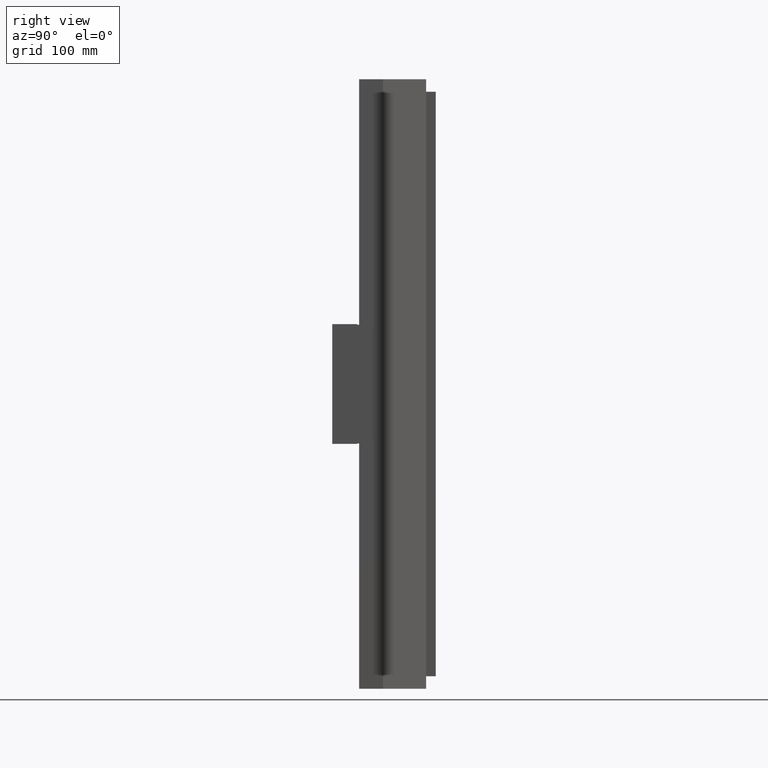
[diagram: clean part render]
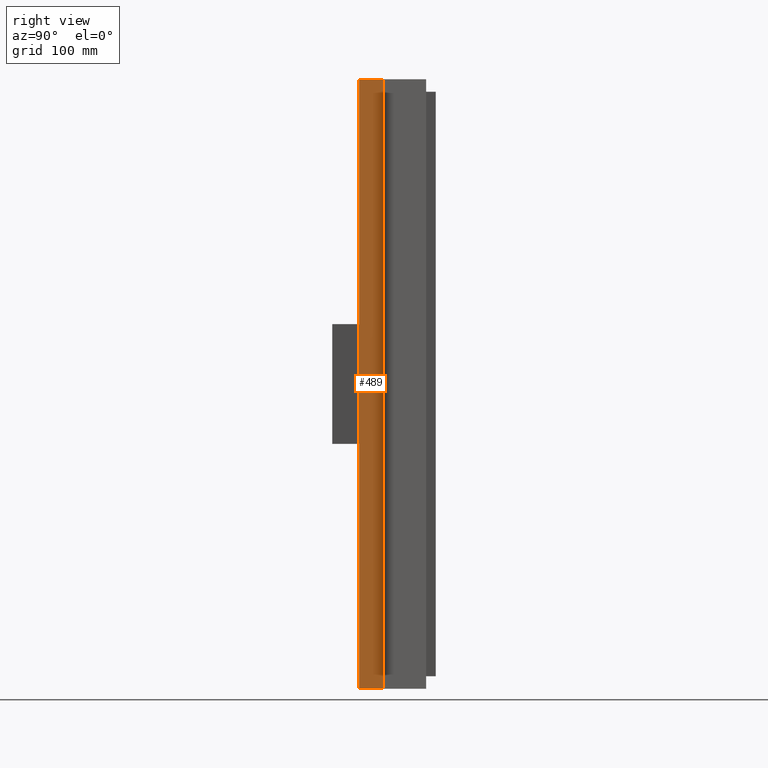
[diagram: same view with one face highlighted and labeled with its STEP entity id]
A machine part, right view. The second image highlights one B-rep face of the part: STEP entity #489.
In plain terms, the highlighted planar face has unit normal (-1, 0, 0).
Its self-contained STEP definition (entity closure, byte-faithful):
#51 = ORIENTED_EDGE ( 'NONE', *, *, #2844, .T. ) ;
#59 = ORIENTED_EDGE ( 'NONE', *, *, #1019, .F. ) ;
#132 = LINE ( 'NONE', #763, #638 ) ;
#195 = LINE ( 'NONE', #256, #335 ) ;
#256 = CARTESIAN_POINT ( 'NONE',  ( 20.88361753920343500, -45.00000000000002100, 318.0000000000000000 ) ) ;
#277 = CARTESIAN_POINT ( 'NONE',  ( 20.88361753920343500, -45.00000000000002100, -318.0000000000000000 ) ) ;
#302 = VERTEX_POINT ( 'NONE', #2843 ) ;
#335 = VECTOR ( 'NONE', #593, 1000.000000000000000 ) ;
#354 = ORIENTED_EDGE ( 'NONE', *, *, #1096, .T. ) ;
#385 = EDGE_CURVE ( 'NONE', #1308, #1595, #195, .T. ) ;
#425 = LINE ( 'NONE', #277, #2388 ) ;
#489 = ADVANCED_FACE ( 'NONE', ( #787 ), #2495, .F. ) ;
#593 = DIRECTION ( 'NONE',  ( -0.0000000000000000000, -0.0000000000000000000, -1.000000000000000000 ) ) ;
#619 = VECTOR ( 'NONE', #2942, 1000.000000000000000 ) ;
#622 = CARTESIAN_POINT ( 'NONE',  ( 20.88361753920343500, -45.00000000000002100, 318.0000000000000000 ) ) ;
#638 = VECTOR ( 'NONE', #1106, 1000.000000000000000 ) ;
#763 = CARTESIAN_POINT ( 'NONE',  ( 20.88361753920343500, -70.00000000000001400, 318.0000000000000000 ) ) ;
#787 = FACE_OUTER_BOUND ( 'NONE', #2782, .T. ) ;
#901 = AXIS2_PLACEMENT_3D ( 'NONE', #2713, #1382, #1417 ) ;
#969 = DIRECTION ( 'NONE',  ( -0.0000000000000000000, 1.000000000000000000, -0.0000000000000000000 ) ) ;
#1019 = EDGE_CURVE ( 'NONE', #1593, #1308, #1720, .T. ) ;
#1096 = EDGE_CURVE ( 'NONE', #302, #1595, #425, .T. ) ;
#1106 = DIRECTION ( 'NONE',  ( -0.0000000000000000000, -0.0000000000000000000, -1.000000000000000000 ) ) ;
#1159 = CARTESIAN_POINT ( 'NONE',  ( 20.88361753920343500, -70.00000000000001400, 318.0000000000000000 ) ) ;
#1177 = CARTESIAN_POINT ( 'NONE',  ( 20.88361753920343500, -45.00000000000002100, -318.0000000000000000 ) ) ;
#1308 = VERTEX_POINT ( 'NONE', #622 ) ;
#1382 = DIRECTION ( 'NONE',  ( -1.000000000000000000, 0.0000000000000000000, 0.0000000000000000000 ) ) ;
#1417 = DIRECTION ( 'NONE',  ( 0.0000000000000000000, 0.0000000000000000000, 1.000000000000000000 ) ) ;
#1593 = VERTEX_POINT ( 'NONE', #1159 ) ;
#1595 = VERTEX_POINT ( 'NONE', #1177 ) ;
#1720 = LINE ( 'NONE', #2743, #619 ) ;
#1975 = ORIENTED_EDGE ( 'NONE', *, *, #385, .F. ) ;
#2388 = VECTOR ( 'NONE', #969, 1000.000000000000000 ) ;
#2495 = PLANE ( 'NONE',  #901 ) ;
#2713 = CARTESIAN_POINT ( 'NONE',  ( 20.88361753920343500, -45.00000000000002100, 318.0000000000000000 ) ) ;
#2743 = CARTESIAN_POINT ( 'NONE',  ( 20.88361753920343500, -45.00000000000002100, 318.0000000000000000 ) ) ;
#2782 = EDGE_LOOP ( 'NONE', ( #354, #1975, #59, #51 ) ) ;
#2843 = CARTESIAN_POINT ( 'NONE',  ( 20.88361753920343500, -70.00000000000001400, -318.0000000000000000 ) ) ;
#2844 = EDGE_CURVE ( 'NONE', #1593, #302, #132, .T. ) ;
#2942 = DIRECTION ( 'NONE',  ( -0.0000000000000000000, 1.000000000000000000, -0.0000000000000000000 ) ) ;